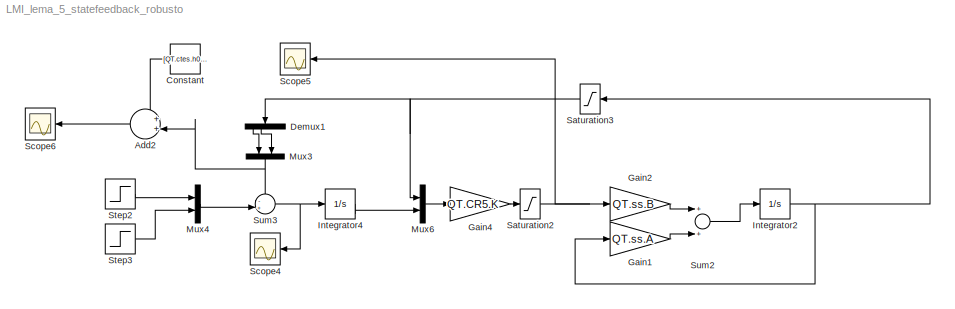
MODEL LMI_lema_5_statefeedback_robusto
KIND model
BLOCK [Sum] Add2
  IconShape = round
  InputSameDT = off
  Inputs = ++|
  OutDataTypeStr = Inherit: Inherit via internal rule
  Ports = [2, 1]
  SID = 159
  SaturateOnIntegerOverflow = off
BLOCK [Constant] Constant
  SID = 160
  Value = [QT.ctes.h0(1) QT.ctes.h0(2)]
BLOCK [Demux] Demux1
  DisplayOption = bar
  Ports = [1, 4]
  SID = 161
BLOCK [Gain] Gain1
  Gain = QT.ss.A
  Multiplication = Matrix(K*u)
  OutDataTypeStr = Inherit: Inherit via internal rule
  ParamDataTypeStr = Inherit: Inherit via internal rule
  SID = 162
  SaturateOnIntegerOverflow = off
BLOCK [Gain] Gain2
  Gain = QT.ss.B
  Multiplication = Matrix(K*u)
  OutDataTypeStr = Inherit: Inherit via internal rule
  ParamDataTypeStr = Inherit: Inherit via internal rule
  SID = 163
  SaturateOnIntegerOverflow = off
BLOCK [Gain] Gain4
  Gain = QT.CR5.K
  Multiplication = Matrix(K*u)
  OutDataTypeStr = Inherit: Inherit via internal rule
  ParamDataTypeStr = Inherit: Inherit via internal rule
  SID = 164
  SaturateOnIntegerOverflow = off
BLOCK [Integrator] Integrator2
  Ports = [1, 1]
  SID = 165
BLOCK [Integrator] Integrator4
  Ports = [1, 1]
  SID = 166
BLOCK [Mux] Mux3
  DisplayOption = bar
  Inputs = 2
  Ports = [2, 1]
  SID = 167
BLOCK [Mux] Mux4
  DisplayOption = bar
  Inputs = 2
  Ports = [2, 1]
  SID = 168
BLOCK [Mux] Mux6
  DisplayOption = bar
  Inputs = 2
  Ports = [2, 1]
  SID = 169
BLOCK [Saturate] Saturation2
  InputPortMap = u0
  LowerLimit = -1.5
  Ports = [1, 1]
  SID = 170
  UpperLimit = 1.5
BLOCK [Saturate] Saturation3
  InputPortMap = u0
  LowerLimit = -5
  Ports = [1, 1]
  SID = 171
  UpperLimit = 10
BLOCK [Scope] Scope4
  DataFormat = StructureWithTime
  Floating = off
  NumInputPorts = 1
  Ports = [1]
  SID = 172
  SampleTime = 1
  SaveName = ScopeData3
  YMax = 2.25
  YMin = -0.75
BLOCK [Scope] Scope5
  DataFormat = StructureWithTime
  Floating = off
  NumInputPorts = 1
  Ports = [1]
  SID = 173
  SampleInput = on
  SampleTime = 1
  SaveName = ScopeData4
  YMax = 2.25
  YMin = -0.75
BLOCK [Scope] Scope6
  DataFormat = StructureWithTime
  Floating = off
  LimitDataPoints = off
  NumInputPorts = 1
  Ports = [1]
  SID = 174
  SampleTime = 0
  SaveName = Simulado
  SaveToWorkspace = on
  TimeRange = 10
BLOCK [Step] Step2
  SID = 175
  SampleTime = 0
  Time = 300
BLOCK [Step] Step3
  SID = 176
  SampleTime = 0
  Time = 1100
BLOCK [Sum] Sum2
  InputSameDT = off
  OutDataTypeStr = Inherit: Inherit via internal rule
  Ports = [2, 1]
  SID = 177
  SaturateOnIntegerOverflow = off
BLOCK [Sum] Sum3
  IconShape = round
  InputSameDT = off
  Inputs = -+|
  OutDataTypeStr = Inherit: Inherit via internal rule
  Ports = [2, 1]
  SID = 178
  SaturateOnIntegerOverflow = off
LINE Add2:1 -> Scope6:1
LINE Constant:1 -> Add2:1
LINE Demux1:1 -> Mux3:1
LINE Demux1:2 -> Mux3:2
LINE Gain1:1 -> Sum2:2
LINE Gain2:1 -> Sum2:1
LINE Gain4:1 -> Saturation2:1
NET Integrator2:1 -> Gain1:1, Saturation3:1
LINE Integrator4:1 -> Mux6:2
NET Mux3:1 -> Add2:2, Sum3:1
LINE Mux4:1 -> Sum3:2
LINE Mux6:1 -> Gain4:1
NET Saturation2:1 -> Gain2:1, Scope5:1
NET Saturation3:1 -> Demux1:1, Mux6:1
LINE Step2:1 -> Mux4:1
LINE Step3:1 -> Mux4:2
LINE Sum2:1 -> Integrator2:1
NET Sum3:1 -> Integrator4:1, Scope4:1
note: NET lines group one-source signal fan-out (src -> all destinations, sorted); 1:1 wires keep LINE
